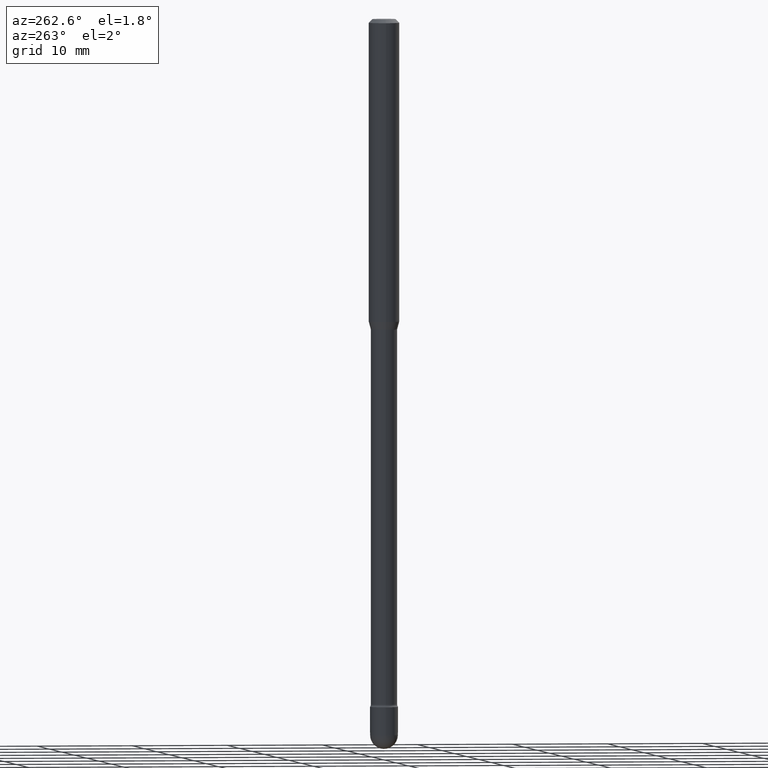
[diagram: clean part render]
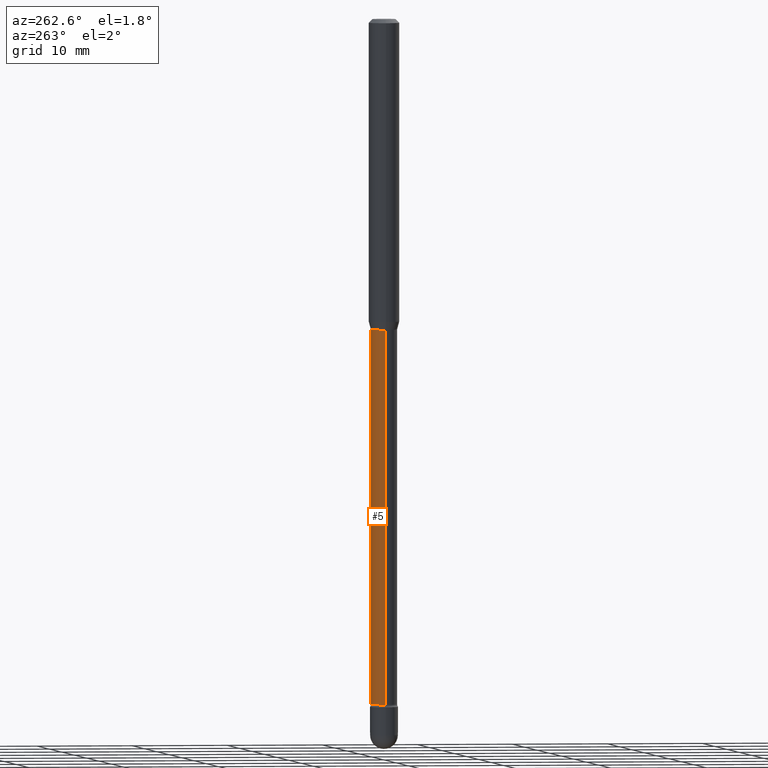
[diagram: same view with one face highlighted and labeled with its STEP entity id]
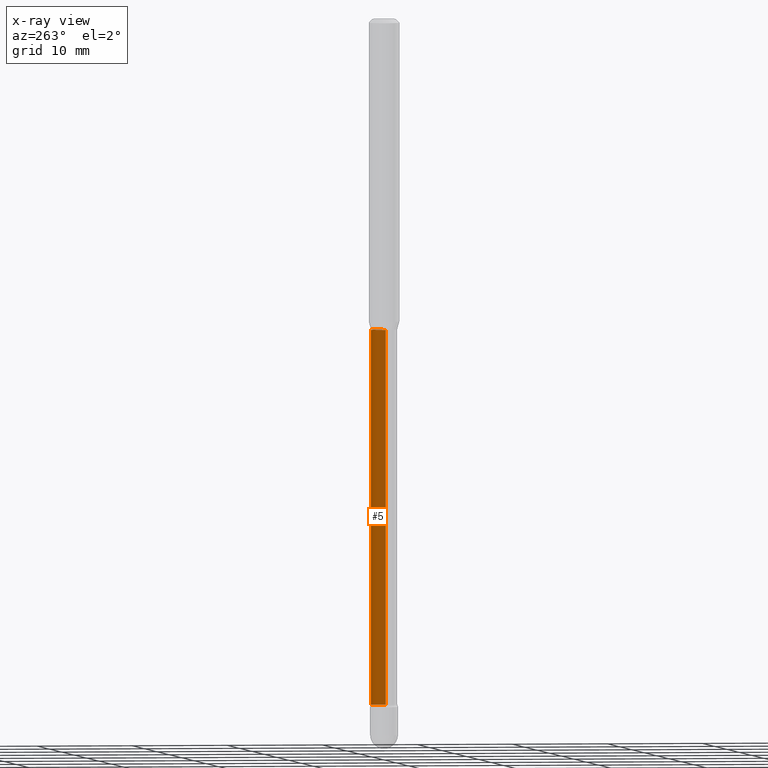
[diagram: x-ray of the same camera — body ghosted, the highlighted face saturated]
A machine part, auxiliary view. The second image highlights one B-rep face of the part: STEP entity #5.
The next image is the same camera in x-ray: the body ghosted, the highlighted face saturated — about 0% of this face is hidden behind the body in this view.
In plain terms, the highlighted cylindrical surface (edge-blend (fillet) strip) has radius 1.3729 mm, axis along (-0, 0, 1).
Its self-contained STEP definition (entity closure, byte-faithful):
#1 = CYLINDRICAL_SURFACE ( 'NONE', #156, 0.05404999999999999388 ) ;
#5 = ADVANCED_FACE ( 'NONE', ( #99 ), #1, .T. ) ;
#15 = AXIS2_PLACEMENT_3D ( 'NONE', #36, #32, #294 ) ;
#31 = VERTEX_POINT ( 'NONE', #485 ) ;
#32 = DIRECTION ( 'NONE',  ( -2.445468806185136597E-29, 3.491481338843145583E-15, 1.000000000000000000 ) ) ;
#36 = CARTESIAN_POINT ( 'NONE',  ( 6.889935568795809204E-29, -9.837001970108552726E-15, -2.817429341715430358 ) ) ;
#60 = EDGE_CURVE ( 'NONE', #31, #289, #345, .T. ) ;
#76 = ORIENTED_EDGE ( 'NONE', *, *, #60, .T. ) ;
#99 = FACE_OUTER_BOUND ( 'NONE', #337, .T. ) ;
#104 = ORIENTED_EDGE ( 'NONE', *, *, #178, .F. ) ;
#105 = VECTOR ( 'NONE', #131, 39.37007874015748143 ) ;
#131 = DIRECTION ( 'NONE',  ( -2.445468806185136877E-29, 3.491481338843145188E-15, 1.000000000000000000 ) ) ;
#134 = CARTESIAN_POINT ( 'NONE',  ( -1.169113584055446105E-44, 1.669184350826100908E-30, 4.780733988912460139E-16 ) ) ;
#156 = AXIS2_PLACEMENT_3D ( 'NONE', #134, #402, #309 ) ;
#157 = CIRCLE ( 'NONE', #474, 0.05405000000000000082 ) ;
#162 = ORIENTED_EDGE ( 'NONE', *, *, #392, .T. ) ;
#168 = CARTESIAN_POINT ( 'NONE',  ( 0.05404999999999998694, -1.021443110283749521E-14, -2.817429341715430358 ) ) ;
#178 = EDGE_CURVE ( 'NONE', #469, #382, #319, .T. ) ;
#186 = DIRECTION ( 'NONE',  ( -2.445468806185136877E-29, 3.491481338843145188E-15, 1.000000000000000000 ) ) ;
#202 = CARTESIAN_POINT ( 'NONE',  ( 0.05405000000000000082, -4.835962773332031011E-15, -1.276974787463811323 ) ) ;
#220 = CARTESIAN_POINT ( 'NONE',  ( 3.122802009027644982E-29, -4.458533640603088529E-15, -1.276974787463811323 ) ) ;
#223 = CARTESIAN_POINT ( 'NONE',  ( -0.05404999999999999388, 3.840483486783357833E-16, 4.780733988912433515E-16 ) ) ;
#289 = VERTEX_POINT ( 'NONE', #503 ) ;
#294 = DIRECTION ( 'NONE',  ( 1.000000000000000000, -6.982962677686250933E-15, 0.000000000000000000 ) ) ;
#309 = DIRECTION ( 'NONE',  ( 1.000000000000000000, -6.982962677686266711E-15, 4.825802158028139437E-29 ) ) ;
#312 = DIRECTION ( 'NONE',  ( -2.445468806185136597E-29, 3.491481338843145583E-15, 1.000000000000000000 ) ) ;
#319 = LINE ( 'NONE', #406, #482 ) ;
#326 = CIRCLE ( 'NONE', #15, 0.05404999999999998694 ) ;
#337 = EDGE_LOOP ( 'NONE', ( #162, #76, #508, #104 ) ) ;
#345 = LINE ( 'NONE', #223, #105 ) ;
#352 = DIRECTION ( 'NONE',  ( 1.000000000000000000, -6.982962677686266711E-15, 0.000000000000000000 ) ) ;
#382 = VERTEX_POINT ( 'NONE', #202 ) ;
#392 = EDGE_CURVE ( 'NONE', #469, #31, #326, .T. ) ;
#402 = DIRECTION ( 'NONE',  ( -2.445468806185136597E-29, 3.491481338843145583E-15, 1.000000000000000000 ) ) ;
#406 = CARTESIAN_POINT ( 'NONE',  ( 0.05404999999999999388, -3.774291327289410031E-16, 4.780733988912486763E-16 ) ) ;
#469 = VERTEX_POINT ( 'NONE', #168 ) ;
#474 = AXIS2_PLACEMENT_3D ( 'NONE', #220, #312, #352 ) ;
#482 = VECTOR ( 'NONE', #186, 39.37007874015748143 ) ;
#485 = CARTESIAN_POINT ( 'NONE',  ( -0.05404999999999998694, -9.457404646638868942E-15, -2.817429341715430358 ) ) ;
#503 = CARTESIAN_POINT ( 'NONE',  ( -0.05405000000000000082, -6.763719456677488542E-15, -1.276974787463811323 ) ) ;
#508 = ORIENTED_EDGE ( 'NONE', *, *, #530, .F. ) ;
#530 = EDGE_CURVE ( 'NONE', #382, #289, #157, .T. ) ;